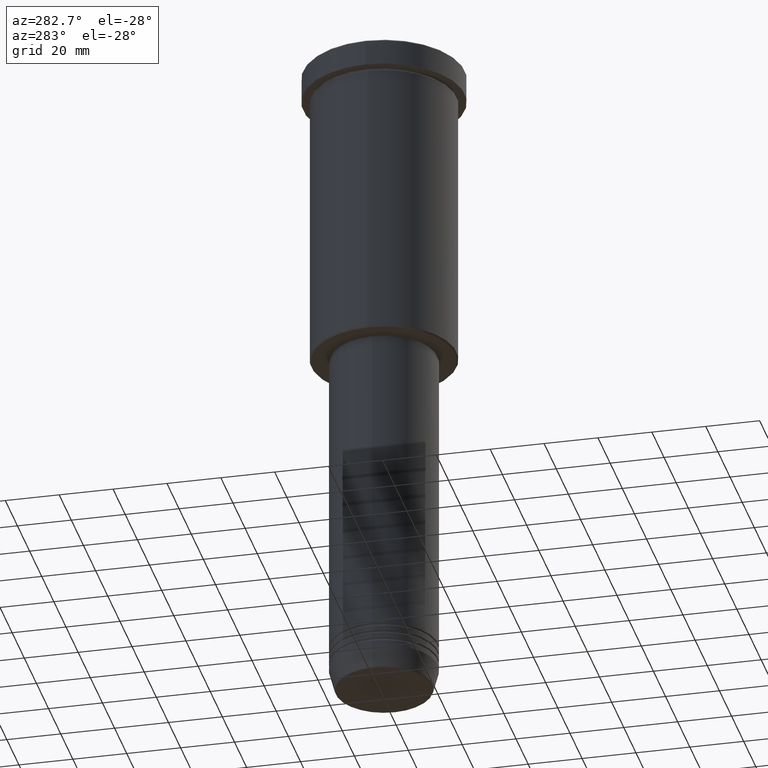
[diagram: clean part render]
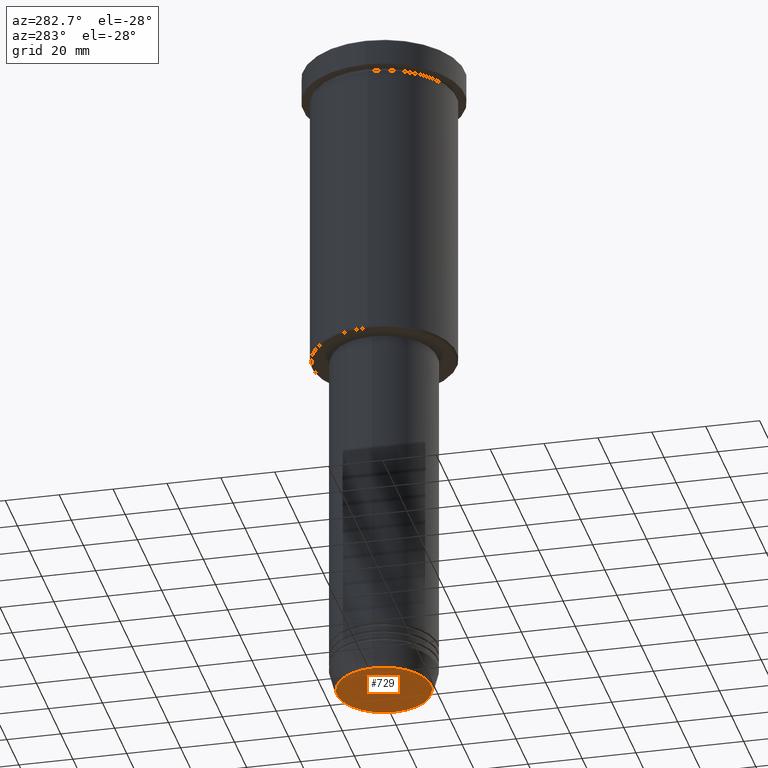
[diagram: same view with one face highlighted and labeled with its STEP entity id]
A machine part, auxiliary view. The second image highlights one B-rep face of the part: STEP entity #729.
In plain terms, the highlighted planar face has unit normal (0, -0, 1).
Its self-contained STEP definition (entity closure, byte-faithful):
#10 = AXIS2_PLACEMENT_3D ( 'NONE', #712, #418, #1073 ) ;
#37 = PLANE ( 'NONE',  #1058 ) ;
#60 = VERTEX_POINT ( 'NONE', #885 ) ;
#132 = DIRECTION ( 'NONE',  ( 0.000000000000000000, 0.000000000000000000, -1.000000000000000000 ) ) ;
#197 = AXIS2_PLACEMENT_3D ( 'NONE', #932, #132, #199 ) ;
#199 = DIRECTION ( 'NONE',  ( 1.000000000000000000, 0.000000000000000000, 0.000000000000000000 ) ) ;
#218 = CARTESIAN_POINT ( 'NONE',  ( 0.000000000000000000, 0.000000000000000000, -251.0000000000000000 ) ) ;
#234 = CIRCLE ( 'NONE', #10, 17.47274296656154036 ) ;
#379 = EDGE_LOOP ( 'NONE', ( #635, #601 ) ) ;
#400 = DIRECTION ( 'NONE',  ( 0.000000000000000000, -0.000000000000000000, 1.000000000000000000 ) ) ;
#418 = DIRECTION ( 'NONE',  ( 0.000000000000000000, 0.000000000000000000, -1.000000000000000000 ) ) ;
#424 = EDGE_CURVE ( 'NONE', #60, #579, #234, .T. ) ;
#579 = VERTEX_POINT ( 'NONE', #640 ) ;
#601 = ORIENTED_EDGE ( 'NONE', *, *, #424, .T. ) ;
#622 = CIRCLE ( 'NONE', #197, 17.47274296656154036 ) ;
#635 = ORIENTED_EDGE ( 'NONE', *, *, #784, .T. ) ;
#640 = CARTESIAN_POINT ( 'NONE',  ( 17.47274296656154036, 0.000000000000000000, -251.0000000000000000 ) ) ;
#670 = DIRECTION ( 'NONE',  ( 1.000000000000000000, 0.000000000000000000, 0.000000000000000000 ) ) ;
#712 = CARTESIAN_POINT ( 'NONE',  ( 0.000000000000000000, 0.000000000000000000, -251.0000000000000000 ) ) ;
#729 = ADVANCED_FACE ( 'NONE', ( #937 ), #37, .F. ) ;
#784 = EDGE_CURVE ( 'NONE', #579, #60, #622, .T. ) ;
#885 = CARTESIAN_POINT ( 'NONE',  ( -17.47274296656154036, 2.169366823916869292E-15, -251.0000000000000000 ) ) ;
#932 = CARTESIAN_POINT ( 'NONE',  ( 0.000000000000000000, 0.000000000000000000, -251.0000000000000000 ) ) ;
#937 = FACE_OUTER_BOUND ( 'NONE', #379, .T. ) ;
#1058 = AXIS2_PLACEMENT_3D ( 'NONE', #218, #400, #670 ) ;
#1073 = DIRECTION ( 'NONE',  ( 1.000000000000000000, 0.000000000000000000, 0.000000000000000000 ) ) ;